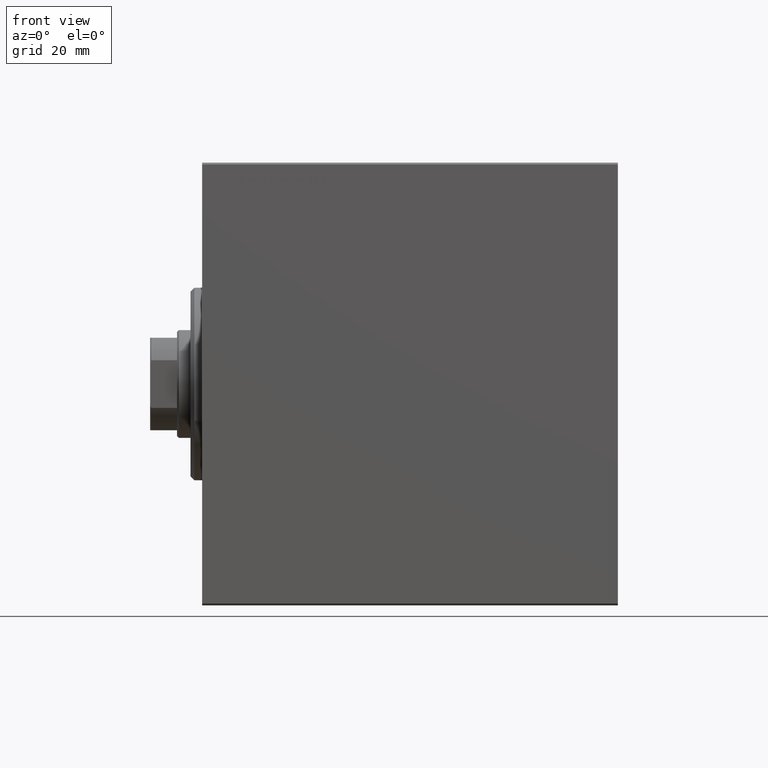
[diagram: clean part render]
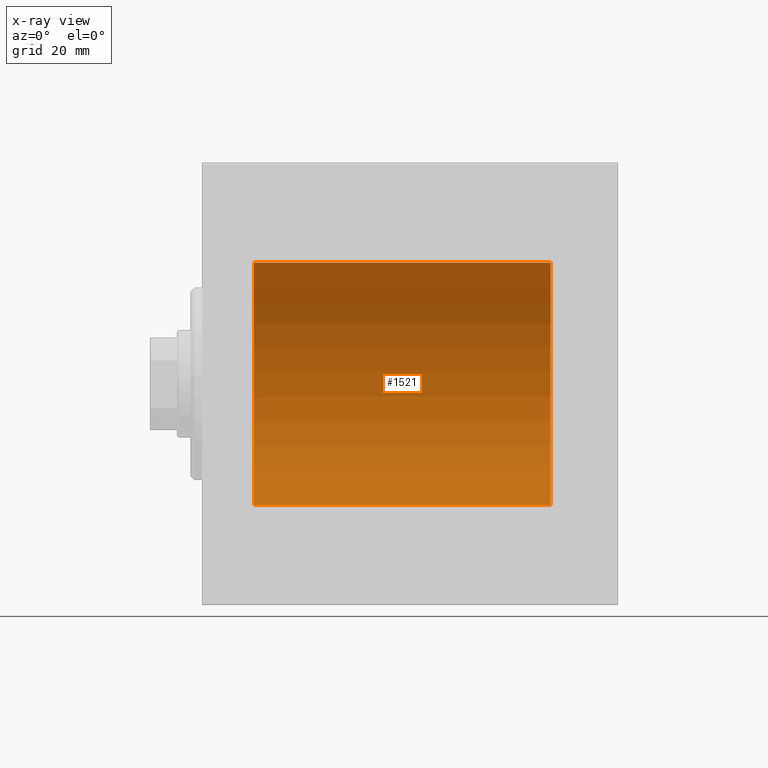
[diagram: x-ray — body ghosted, one internal face saturated and labeled with its STEP entity id]
A machine part, front view, then the same camera in x-ray: the body is ghosted and one INTERNAL B-rep face — a face not visible from any outside direction — is saturated and labeled: STEP entity #1521.
In plain terms, the highlighted cylindrical surface (partial cylindrical patch) has radius 31.5 mm, axis along (-1, -0, -0).
Its self-contained STEP definition (entity closure, byte-faithful):
#1521 = ADVANCED_FACE ( 'NONE', ( #3147 ), #6680, .F. ) ;
#2450 = LINE ( 'NONE', #36779, #34188 ) ;
#2931 = VERTEX_POINT ( 'NONE', #23538 ) ;
#3147 = FACE_OUTER_BOUND ( 'NONE', #7705, .T. ) ;
#4236 = EDGE_CURVE ( 'NONE', #11147, #18923, #2450, .T. ) ;
#4910 = ORIENTED_EDGE ( 'NONE', *, *, #40882, .T. ) ;
#6536 = CARTESIAN_POINT ( 'NONE',  ( 90.50000000000000000, 3.857637417314162689E-15, -31.50000000000000000 ) ) ;
#6680 = CYLINDRICAL_SURFACE ( 'NONE', #22820, 31.50000000000000000 ) ;
#7575 = AXIS2_PLACEMENT_3D ( 'NONE', #10635, #30564, #21269 ) ;
#7629 = CIRCLE ( 'NONE', #39474, 31.50000000000000000 ) ;
#7705 = EDGE_LOOP ( 'NONE', ( #41829, #15351, #29373, #4910 ) ) ;
#9233 = CARTESIAN_POINT ( 'NONE',  ( 13.49999999999999822, 0.000000000000000000, 31.50000000000000000 ) ) ;
#10635 = CARTESIAN_POINT ( 'NONE',  ( 13.49999999999999822, 0.000000000000000000, 0.000000000000000000 ) ) ;
#11147 = VERTEX_POINT ( 'NONE', #6536 ) ;
#14075 = EDGE_CURVE ( 'NONE', #2931, #42946, #18780, .T. ) ;
#15019 = DIRECTION ( 'NONE',  ( -1.000000000000000000, -0.000000000000000000, -0.000000000000000000 ) ) ;
#15073 = CARTESIAN_POINT ( 'NONE',  ( 13.49999999999999822, 3.857637417314162689E-15, -31.50000000000000000 ) ) ;
#15351 = ORIENTED_EDGE ( 'NONE', *, *, #21670, .F. ) ;
#16190 = DIRECTION ( 'NONE',  ( -1.000000000000000000, -0.000000000000000000, -0.000000000000000000 ) ) ;
#18780 = LINE ( 'NONE', #43524, #41400 ) ;
#18923 = VERTEX_POINT ( 'NONE', #15073 ) ;
#21014 = DIRECTION ( 'NONE',  ( -1.000000000000000000, -0.000000000000000000, -0.000000000000000000 ) ) ;
#21269 = DIRECTION ( 'NONE',  ( 0.000000000000000000, 0.000000000000000000, 1.000000000000000000 ) ) ;
#21670 = EDGE_CURVE ( 'NONE', #2931, #11147, #7629, .T. ) ;
#22820 = AXIS2_PLACEMENT_3D ( 'NONE', #27666, #21014, #31638 ) ;
#23538 = CARTESIAN_POINT ( 'NONE',  ( 90.50000000000000000, 0.000000000000000000, 31.50000000000000000 ) ) ;
#27666 = CARTESIAN_POINT ( 'NONE',  ( 90.50000000000000000, 0.000000000000000000, 0.000000000000000000 ) ) ;
#28692 = DIRECTION ( 'NONE',  ( 0.000000000000000000, 0.000000000000000000, 1.000000000000000000 ) ) ;
#29373 = ORIENTED_EDGE ( 'NONE', *, *, #14075, .T. ) ;
#29527 = CIRCLE ( 'NONE', #7575, 31.50000000000000000 ) ;
#30564 = DIRECTION ( 'NONE',  ( -1.000000000000000000, 0.000000000000000000, 0.000000000000000000 ) ) ;
#31638 = DIRECTION ( 'NONE',  ( 0.000000000000000000, 0.000000000000000000, 1.000000000000000000 ) ) ;
#34188 = VECTOR ( 'NONE', #16190, 1000.000000000000000 ) ;
#36779 = CARTESIAN_POINT ( 'NONE',  ( 90.50000000000000000, 3.857637417314162689E-15, -31.50000000000000000 ) ) ;
#39314 = DIRECTION ( 'NONE',  ( -1.000000000000000000, 0.000000000000000000, 0.000000000000000000 ) ) ;
#39474 = AXIS2_PLACEMENT_3D ( 'NONE', #42212, #39314, #28692 ) ;
#40882 = EDGE_CURVE ( 'NONE', #42946, #18923, #29527, .T. ) ;
#41400 = VECTOR ( 'NONE', #15019, 1000.000000000000000 ) ;
#41829 = ORIENTED_EDGE ( 'NONE', *, *, #4236, .F. ) ;
#42212 = CARTESIAN_POINT ( 'NONE',  ( 90.50000000000000000, 0.000000000000000000, 0.000000000000000000 ) ) ;
#42946 = VERTEX_POINT ( 'NONE', #9233 ) ;
#43524 = CARTESIAN_POINT ( 'NONE',  ( 90.50000000000000000, 0.000000000000000000, 31.50000000000000000 ) ) ;